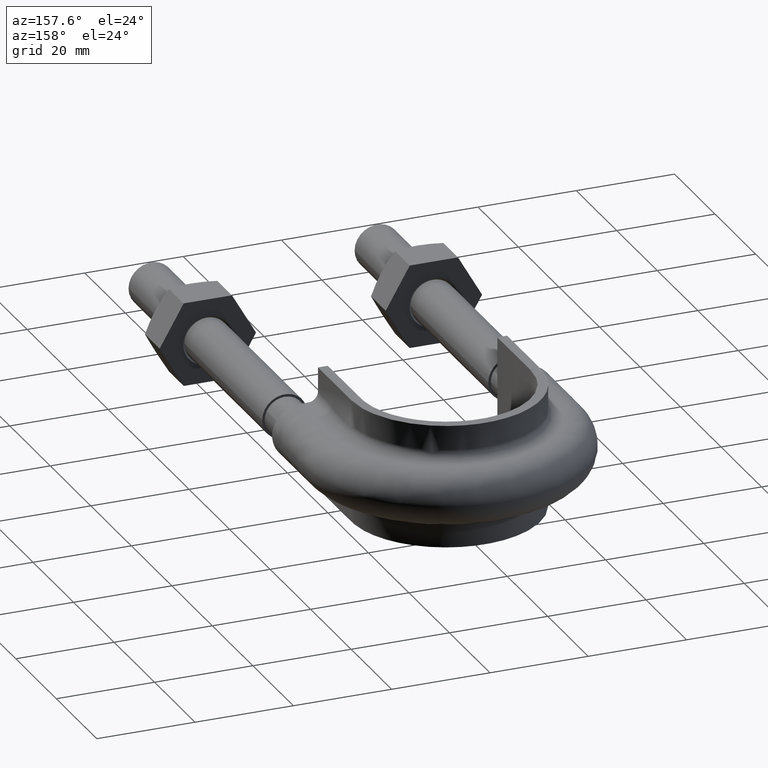
[diagram: clean part render]
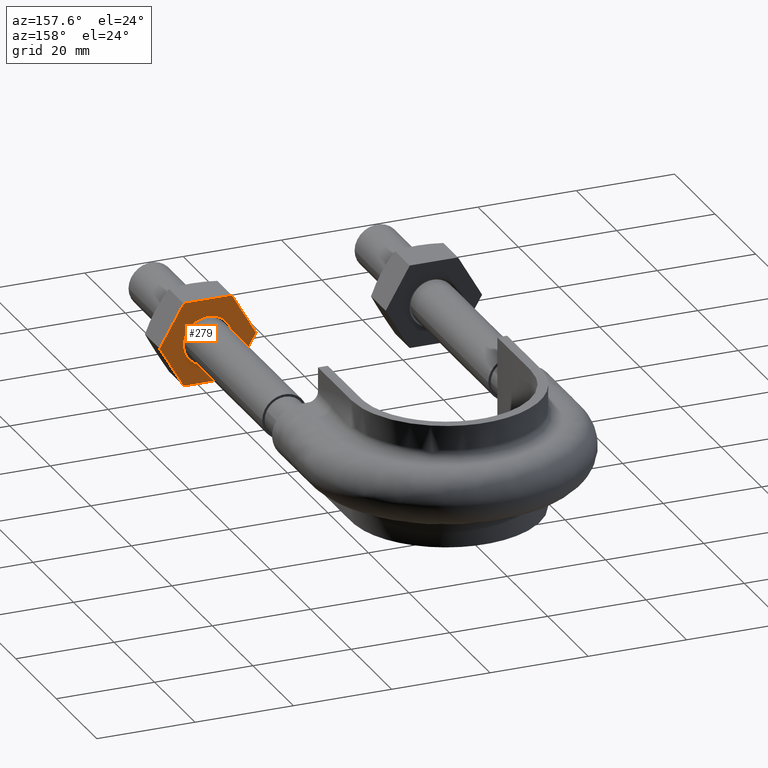
[diagram: same view with one face highlighted and labeled with its STEP entity id]
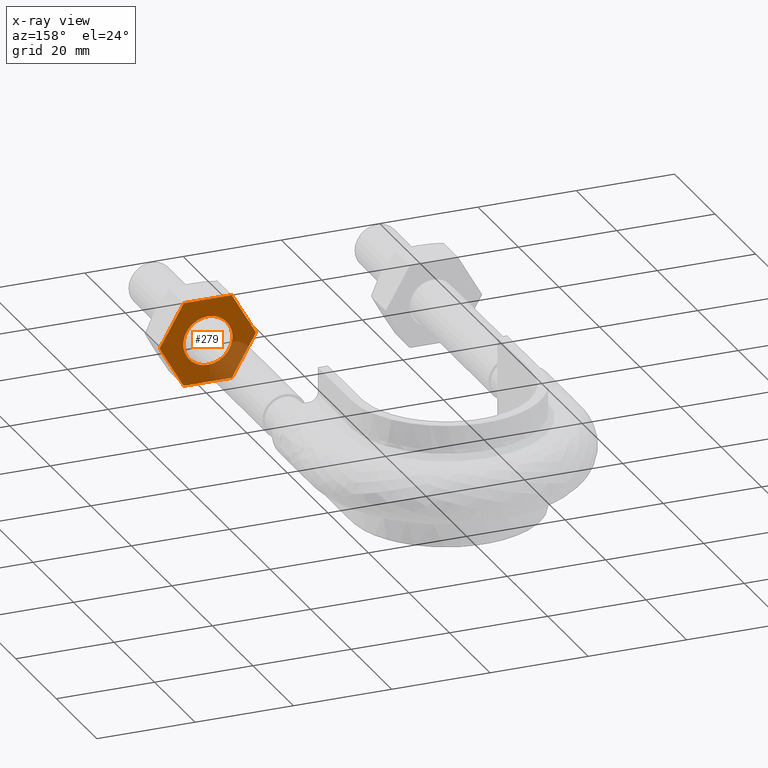
[diagram: x-ray of the same camera — body ghosted, the highlighted face saturated]
A machine part, auxiliary view. The second image highlights one B-rep face of the part: STEP entity #279.
The next image is the same camera in x-ray: the body ghosted, the highlighted face saturated — about 20% of this face is hidden behind the body in this view.
In plain terms, the highlighted planar face has unit normal (-0, -1, -0).
Its self-contained STEP definition (entity closure, byte-faithful):
#279 = ADVANCED_FACE( '', ( #431, #432 ), #433, .F. );
#431 = FACE_OUTER_BOUND( '', #1428, .T. );
#432 = FACE_BOUND( '', #1429, .T. );
#433 = PLANE( '', #1430 );
#1428 = EDGE_LOOP( '', ( #1881, #1882, #1883, #1884, #1885, #1886, #1887, #1888, #1889, #1890, #1891, #1892 ) );
#1429 = EDGE_LOOP( '', ( #1893 ) );
#1430 = AXIS2_PLACEMENT_3D( '', #1894, #1895, #1896 );
#1881 = ORIENTED_EDGE( '', *, *, #2128, .T. );
#1882 = ORIENTED_EDGE( '', *, *, #2129, .T. );
#1883 = ORIENTED_EDGE( '', *, *, #2130, .T. );
#1884 = ORIENTED_EDGE( '', *, *, #2131, .T. );
#1885 = ORIENTED_EDGE( '', *, *, #2132, .T. );
#1886 = ORIENTED_EDGE( '', *, *, #2133, .T. );
#1887 = ORIENTED_EDGE( '', *, *, #2134, .T. );
#1888 = ORIENTED_EDGE( '', *, *, #2116, .T. );
#1889 = ORIENTED_EDGE( '', *, *, #2119, .T. );
#1890 = ORIENTED_EDGE( '', *, *, #2135, .T. );
#1891 = ORIENTED_EDGE( '', *, *, #2120, .T. );
#1892 = ORIENTED_EDGE( '', *, *, #2127, .T. );
#1893 = ORIENTED_EDGE( '', *, *, #2136, .F. );
#1894 = CARTESIAN_POINT( '', ( 18.1000000000000, 28.0000000000000, 8.48704895708751 ) );
#1895 = DIRECTION( '', ( -2.44921270764475E-016, -1.00000000000000, -3.06151588455594E-016 ) );
#1896 = DIRECTION( '', ( 0.000000000000000, 3.06151588455594E-016, -1.00000000000000 ) );
#2116 = EDGE_CURVE( '', #2344, #2342, #2345, .T. );
#2119 = EDGE_CURVE( '', #2342, #2347, #2349, .F. );
#2120 = EDGE_CURVE( '', #2350, #2351, #2352, .F. );
#2127 = EDGE_CURVE( '', #2351, #2362, #2364, .T. );
#2128 = EDGE_CURVE( '', #2362, #2365, #2366, .F. );
#2129 = EDGE_CURVE( '', #2365, #2367, #2368, .T. );
#2130 = EDGE_CURVE( '', #2367, #2369, #2370, .F. );
#2131 = EDGE_CURVE( '', #2369, #2371, #2372, .T. );
#2132 = EDGE_CURVE( '', #2371, #2373, #2374, .F. );
#2133 = EDGE_CURVE( '', #2373, #2375, #2376, .T. );
#2134 = EDGE_CURVE( '', #2375, #2344, #2377, .F. );
#2135 = EDGE_CURVE( '', #2347, #2350, #2378, .T. );
#2136 = EDGE_CURVE( '', #2379, #2379, #2380, .F. );
#2342 = VERTEX_POINT( '', #2890 );
#2344 = VERTEX_POINT( '', #2893 );
#2345 = LINE( '', #2894, #2895 );
#2347 = VERTEX_POINT( '', #2898 );
#2349 = CIRCLE( '', #2901, 9.80000000000000 );
#2350 = VERTEX_POINT( '', #2902 );
#2351 = VERTEX_POINT( '', #2903 );
#2352 = CIRCLE( '', #2904, 9.80000000000000 );
#2362 = VERTEX_POINT( '', #2926 );
#2364 = LINE( '', #2929, #2930 );
#2365 = VERTEX_POINT( '', #2931 );
#2366 = CIRCLE( '', #2932, 9.80000000000000 );
#2367 = VERTEX_POINT( '', #2933 );
#2368 = LINE( '', #2934, #2935 );
#2369 = VERTEX_POINT( '', #2936 );
#2370 = CIRCLE( '', #2937, 9.80000000000000 );
#2371 = VERTEX_POINT( '', #2938 );
#2372 = LINE( '', #2939, #2940 );
#2373 = VERTEX_POINT( '', #2941 );
#2374 = CIRCLE( '', #2942, 9.80000000000000 );
#2375 = VERTEX_POINT( '', #2943 );
#2376 = LINE( '', #2944, #2945 );
#2377 = CIRCLE( '', #2946, 9.80000000000000 );
#2378 = LINE( '', #2947, #2948 );
#2379 = VERTEX_POINT( '', #2949 );
#2380 = CIRCLE( '', #2950, 5.00000000000000 );
#2890 = CARTESIAN_POINT( '', ( 13.2000343881808, 28.0000000000000, -0.0259616479013330 ) );
#2893 = CARTESIAN_POINT( '', ( 18.0775337474837, 28.0000000000000, -8.47403835209863 ) );
#2894 = CARTESIAN_POINT( '', ( 10.7387840678323, 28.0000000000000, 4.23704895708752 ) );
#2895 = VECTOR( '', #3170, 1000.00000000000 );
#2898 = CARTESIAN_POINT( '', ( 13.2000343881808, 28.0000000000000, 0.0259616479013250 ) );
#2901 = AXIS2_PLACEMENT_3D( '', #3173, #3174, #3175 );
#2902 = CARTESIAN_POINT( '', ( 18.0775337474838, 28.0000000000000, 8.47403835209866 ) );
#2903 = CARTESIAN_POINT( '', ( 18.1225006406971, 28.0000000000000, 8.50000000000001 ) );
#2904 = AXIS2_PLACEMENT_3D( '', #3176, #3177, #3178 );
#2926 = CARTESIAN_POINT( '', ( 27.8774993593029, 28.0000000000000, 8.50000000000001 ) );
#2929 = CARTESIAN_POINT( '', ( 18.1000000000000, 28.0000000000000, 8.50000000000001 ) );
#2930 = VECTOR( '', #3185, 1000.00000000000 );
#2931 = CARTESIAN_POINT( '', ( 27.9224662525163, 28.0000000000000, 8.47403835209865 ) );
#2932 = AXIS2_PLACEMENT_3D( '', #3186, #3187, #3188 );
#2933 = CARTESIAN_POINT( '', ( 32.7999656118192, 28.0000000000000, 0.0259616479013497 ) );
#2934 = CARTESIAN_POINT( '', ( 25.4612159321677, 28.0000000000000, 12.7370489570875 ) );
#2935 = VECTOR( '', #3189, 1000.00000000000 );
#2936 = CARTESIAN_POINT( '', ( 32.7999656118192, 28.0000000000000, -0.0259616479014826 ) );
#2937 = AXIS2_PLACEMENT_3D( '', #3190, #3191, #3192 );
#2938 = CARTESIAN_POINT( '', ( 27.9224662525164, 28.0000000000000, -8.47403835209855 ) );
#2939 = CARTESIAN_POINT( '', ( 32.8112159321678, 28.0000000000000, -0.00647552145626416 ) );
#2940 = VECTOR( '', #3193, 1000.00000000000 );
#2941 = CARTESIAN_POINT( '', ( 27.8774993593029, 28.0000000000000, -8.49999999999999 ) );
#2942 = AXIS2_PLACEMENT_3D( '', #3194, #3195, #3196 );
#2943 = CARTESIAN_POINT( '', ( 18.1225006406971, 28.0000000000000, -8.49999999999999 ) );
#2944 = CARTESIAN_POINT( '', ( 18.1000000000000, 28.0000000000000, -8.49999999999999 ) );
#2945 = VECTOR( '', #3197, 1000.00000000000 );
#2946 = AXIS2_PLACEMENT_3D( '', #3198, #3199, #3200 );
#2947 = CARTESIAN_POINT( '', ( 18.0887840678323, 28.0000000000000, 8.49352447854374 ) );
#2948 = VECTOR( '', #3201, 1000.00000000000 );
#2949 = CARTESIAN_POINT( '', ( 23.0000000000000, 28.0000000000000, -4.99999999999999 ) );
#2950 = AXIS2_PLACEMENT_3D( '', #3202, #3203, #3204 );
#3170 = DIRECTION( '', ( -0.500000000000000, -1.42674417629266E-016, 0.866025403784439 ) );
#3173 = CARTESIAN_POINT( '', ( 23.0000000000000, 28.0000000000000, 9.03086199571801E-015 ) );
#3174 = DIRECTION( '', ( -2.44921270764475E-016, -1.00000000000000, -3.06151588455594E-016 ) );
#3175 = DIRECTION( '', ( 0.000000000000000, 3.06151588455594E-016, -1.00000000000000 ) );
#3176 = CARTESIAN_POINT( '', ( 23.0000000000000, 28.0000000000000, 9.03086199571801E-015 ) );
#3177 = DIRECTION( '', ( -2.44921270764475E-016, -1.00000000000000, -3.06151588455594E-016 ) );
#3178 = DIRECTION( '', ( 0.000000000000000, 3.06151588455594E-016, -1.00000000000000 ) );
#3185 = DIRECTION( '', ( 1.00000000000000, -2.44921270764475E-016, -7.49830360911066E-032 ) );
#3186 = CARTESIAN_POINT( '', ( 23.0000000000000, 28.0000000000000, 9.03086199571801E-015 ) );
#3187 = DIRECTION( '', ( -2.44921270764475E-016, -1.00000000000000, -3.06151588455594E-016 ) );
#3188 = DIRECTION( '', ( 0.000000000000000, 3.06151588455594E-016, -1.00000000000000 ) );
#3189 = DIRECTION( '', ( 0.500000000000000, 1.42674417629266E-016, -0.866025403784439 ) );
#3190 = CARTESIAN_POINT( '', ( 23.0000000000000, 28.0000000000000, 9.03086199571801E-015 ) );
#3191 = DIRECTION( '', ( -2.44921270764475E-016, -1.00000000000000, -3.06151588455594E-016 ) );
#3192 = DIRECTION( '', ( 0.000000000000000, 3.06151588455594E-016, -1.00000000000000 ) );
#3193 = DIRECTION( '', ( -0.500000000000000, 3.87595688393741E-016, -0.866025403784439 ) );
#3194 = CARTESIAN_POINT( '', ( 23.0000000000000, 28.0000000000000, 9.03086199571801E-015 ) );
#3195 = DIRECTION( '', ( -2.44921270764475E-016, -1.00000000000000, -3.06151588455594E-016 ) );
#3196 = DIRECTION( '', ( 0.000000000000000, 3.06151588455594E-016, -1.00000000000000 ) );
#3197 = DIRECTION( '', ( -1.00000000000000, 2.44921270764475E-016, 7.49830360911067E-032 ) );
#3198 = CARTESIAN_POINT( '', ( 23.0000000000000, 28.0000000000000, 9.03086199571801E-015 ) );
#3199 = DIRECTION( '', ( -2.44921270764475E-016, -1.00000000000000, -3.06151588455594E-016 ) );
#3200 = DIRECTION( '', ( 0.000000000000000, 3.06151588455594E-016, -1.00000000000000 ) );
#3201 = DIRECTION( '', ( 0.500000000000000, -3.87595688393741E-016, 0.866025403784439 ) );
#3202 = CARTESIAN_POINT( '', ( 23.0000000000000, 28.0000000000000, 9.03086199571801E-015 ) );
#3203 = DIRECTION( '', ( -2.44921270764475E-016, -1.00000000000000, -3.06151588455594E-016 ) );
#3204 = DIRECTION( '', ( 0.000000000000000, 3.06151588455594E-016, -1.00000000000000 ) );